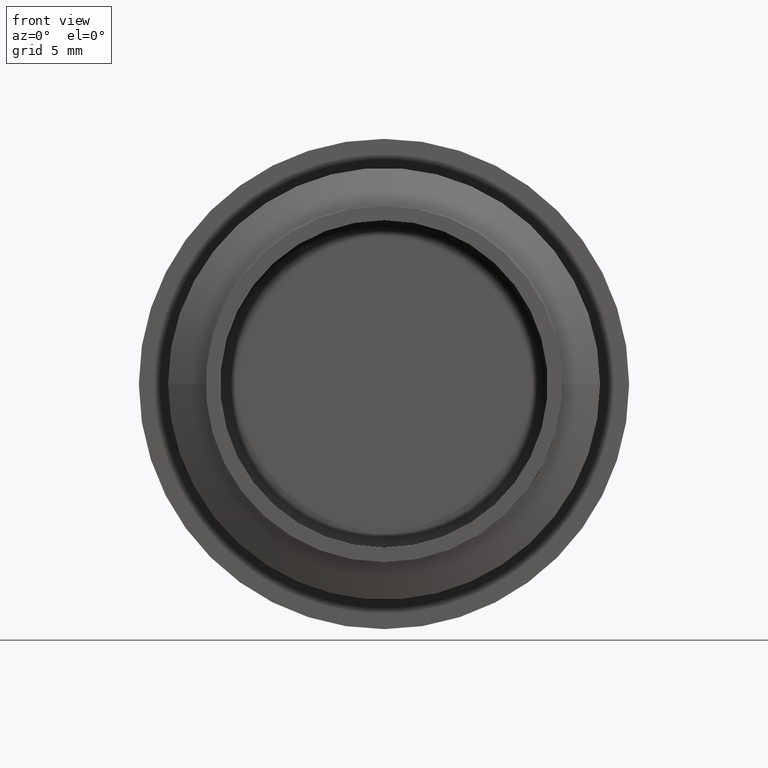
[diagram: clean part render]
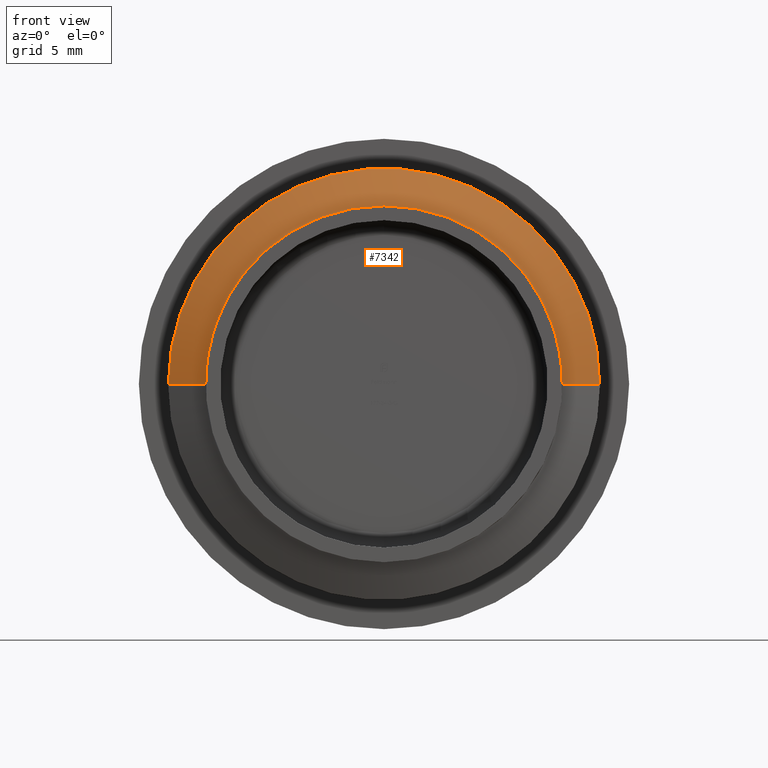
[diagram: same view with one face highlighted and labeled with its STEP entity id]
A machine part, front view. The second image highlights one B-rep face of the part: STEP entity #7342.
In plain terms, the highlighted conical surface has half-angle 64.895 deg.
Its self-contained STEP definition (entity closure, byte-faithful):
#994 = VERTEX_POINT ( 'NONE', #1245 ) ;
#1245 = CARTESIAN_POINT ( 'NONE',  ( 14.82121399700021414, 2.504723446119709429, 1.815075228090429229E-15 ) ) ;
#1340 = DIRECTION ( 'NONE',  ( -0.9055310776063717482, 0.4242799400031107004, 0.000000000000000000 ) ) ;
#1486 = VERTEX_POINT ( 'NONE', #13776 ) ;
#1760 = DIRECTION ( 'NONE',  ( -1.000000000000000000, -1.047914589569663029E-14, 0.000000000000000000 ) ) ;
#1995 = DIRECTION ( 'NONE',  ( -1.047444401652940164E-14, 1.000000000000000000, 0.000000000000000000 ) ) ;
#2339 = ORIENTED_EDGE ( 'NONE', *, *, #10317, .T. ) ;
#2522 = DIRECTION ( 'NONE',  ( 1.000000000000000000, 1.047537341619571970E-14, 0.000000000000000000 ) ) ;
#2562 = LINE ( 'NONE', #12596, #12415 ) ;
#3171 = EDGE_CURVE ( 'NONE', #8033, #3606, #3555, .T. ) ;
#3555 = CIRCLE ( 'NONE', #12464, 12.25000000000000000 ) ;
#3606 = VERTEX_POINT ( 'NONE', #12395 ) ;
#3709 = AXIS2_PLACEMENT_3D ( 'NONE', #10028, #9933, #2522 ) ;
#4167 = DIRECTION ( 'NONE',  ( 0.9055310776063628664, 0.4242799400031296853, 1.108955735719091243E-16 ) ) ;
#4356 = DIRECTION ( 'NONE',  ( -1.047444401652940164E-14, 1.000000000000000000, 0.000000000000000000 ) ) ;
#4430 = EDGE_CURVE ( 'NONE', #994, #13304, #10046, .T. ) ;
#5042 = CONICAL_SURFACE ( 'NONE', #7918, 12.25000000000007638, 1.132629769229690941 ) ;
#5357 = EDGE_CURVE ( 'NONE', #1486, #13304, #5870, .T. ) ;
#5370 = FACE_OUTER_BOUND ( 'NONE', #6312, .T. ) ;
#5470 = ORIENTED_EDGE ( 'NONE', *, *, #4430, .T. ) ;
#5507 = AXIS2_PLACEMENT_3D ( 'NONE', #6002, #13438, #1760 ) ;
#5870 = LINE ( 'NONE', #9946, #12543 ) ;
#6002 = CARTESIAN_POINT ( 'NONE',  ( -1.361677722148650352E-14, 1.299999999999835731, 0.000000000000000000 ) ) ;
#6126 = CARTESIAN_POINT ( 'NONE',  ( -14.82121399700026743, 2.504723446119398567, 0.000000000000000000 ) ) ;
#6312 = EDGE_LOOP ( 'NONE', ( #2339, #10157, #6791, #5470, #13532 ) ) ;
#6791 = ORIENTED_EDGE ( 'NONE', *, *, #12301, .T. ) ;
#7253 = CARTESIAN_POINT ( 'NONE',  ( -1.361677722148650352E-14, 1.299999999999835731, 0.000000000000000000 ) ) ;
#7342 = ADVANCED_FACE ( 'NONE', ( #5370 ), #5042, .T. ) ;
#7528 = CARTESIAN_POINT ( 'NONE',  ( -1.361677722148687744E-14, 1.299999999999871481, 0.000000000000000000 ) ) ;
#7918 = AXIS2_PLACEMENT_3D ( 'NONE', #7528, #4356, #10733 ) ;
#8033 = VERTEX_POINT ( 'NONE', #9359 ) ;
#9359 = CARTESIAN_POINT ( 'NONE',  ( 1.500192328955508918E-15, 1.299999999999835731, 12.25000000000000000 ) ) ;
#9933 = DIRECTION ( 'NONE',  ( 1.047444401652940164E-14, -1.000000000000000000, -0.000000000000000000 ) ) ;
#9946 = CARTESIAN_POINT ( 'NONE',  ( -12.25000000000009059, 1.299999999999743139, 0.000000000000000000 ) ) ;
#10028 = CARTESIAN_POINT ( 'NONE',  ( -2.623558551326786736E-14, 2.504723446119553998, 0.000000000000000000 ) ) ;
#10046 = CIRCLE ( 'NONE', #3709, 14.82121399700024078 ) ;
#10157 = ORIENTED_EDGE ( 'NONE', *, *, #3171, .T. ) ;
#10317 = EDGE_CURVE ( 'NONE', #1486, #8033, #11115, .T. ) ;
#10733 = DIRECTION ( 'NONE',  ( -1.000000000000000000, -1.047914589569656560E-14, 0.000000000000000000 ) ) ;
#11115 = CIRCLE ( 'NONE', #5507, 12.25000000000000000 ) ;
#11535 = DIRECTION ( 'NONE',  ( -1.000000000000000000, -1.047914589569663029E-14, 0.000000000000000000 ) ) ;
#12301 = EDGE_CURVE ( 'NONE', #3606, #994, #2562, .T. ) ;
#12395 = CARTESIAN_POINT ( 'NONE',  ( 12.24999999999998579, 1.299999999999964073, 1.657633778522968580E-15 ) ) ;
#12415 = VECTOR ( 'NONE', #4167, 1000.000000000000000 ) ;
#12464 = AXIS2_PLACEMENT_3D ( 'NONE', #7253, #1995, #11535 ) ;
#12543 = VECTOR ( 'NONE', #1340, 1000.000000000000000 ) ;
#12596 = CARTESIAN_POINT ( 'NONE',  ( 12.25000000000006217, 1.300000000000000044, 1.500192328955517003E-15 ) ) ;
#13304 = VERTEX_POINT ( 'NONE', #6126 ) ;
#13438 = DIRECTION ( 'NONE',  ( -1.047444401652940164E-14, 1.000000000000000000, 0.000000000000000000 ) ) ;
#13532 = ORIENTED_EDGE ( 'NONE', *, *, #5357, .F. ) ;
#13776 = CARTESIAN_POINT ( 'NONE',  ( -12.25000000000001421, 1.299999999999707390, 0.000000000000000000 ) ) ;